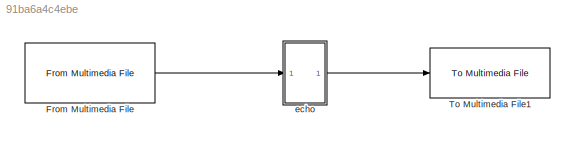
MODEL slx_91ba6a4c4ebe
KIND model
CONFIG AbsTol = auto
CONFIG EnableMultiTasking = off
CONFIG FixedStep = auto
CONFIG MaxStep = auto
CONFIG MinStep = auto
CONFIG RelTol = 1e-3
CONFIG SampleTimeConstraint = Unconstrained
CONFIG Solver = VariableStepAuto
CONFIG SolverName = VariableStepAuto
CONFIG StartTime = 0.0
CONFIG StopTime = 10.0
BLOCK [Reference] From Multimedia File  REF=dspvision/From Multimedia File
  Ports = [0, 1]
  SourceBlock = dspvision/From Multimedia File
  SourceProductBaseCode = VP
  SourceProductName = Computer Vision System Toolbox
  SourceType = From Multimedia File
BLOCK [Reference] To Multimedia File1  REF=dspvision/To Multimedia File
  Ports = [1]
  SourceBlock = dspvision/To Multimedia File
  SourceProductBaseCode = VP
  SourceProductName = Computer Vision System Toolbox
  SourceType = To Multimedia File
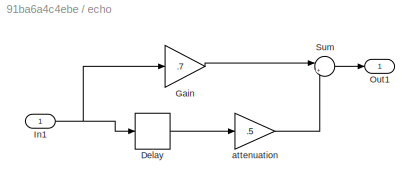
BLOCK [SubSystem] echo
  Ports = [1, 1]
  RequestExecContextInheritance = off
BLOCK [Delay] echo/Delay
  DelayLength = 6000
  DelayLengthUpperLimit = 10000
  InitialCondition = 0
  InputPortMap = u0
  InputProcessing = Columns as channels (frame based)
  Ports = [1, 1]
BLOCK [Gain] echo/Gain
  Gain = .7
  OutDataTypeStr = int16
  ParamDataTypeStr = int16
  SaturateOnIntegerOverflow = off
BLOCK [Inport] echo/In1
  IconDisplay = Port number
  OutDataTypeStr = int16
BLOCK [Outport] echo/Out1
  IconDisplay = Port number
BLOCK [Sum] echo/Sum
  IconShape = round
  InputSameDT = off
  Inputs = |++
  OutDataTypeStr = Inherit: Inherit via internal rule
  Ports = [2, 1]
  SaturateOnIntegerOverflow = off
BLOCK [Gain] echo/attenuation
  Gain = .5
  OutDataTypeStr = int16
  ParamDataTypeStr = Inherit: Inherit via internal rule
  RndMeth = Round
  SaturateOnIntegerOverflow = off
LINE From Multimedia File:1 -> echo:1
LINE echo/Delay:1 -> echo/attenuation:1
LINE echo/Gain:1 -> echo/Sum:1
NET echo/In1:1 -> echo/Delay:1, echo/Gain:1
LINE echo/Sum:1 -> echo/Out1:1
LINE echo/attenuation:1 -> echo/Sum:2
LINE echo:1 -> To Multimedia File1:1
note: NET lines group one-source signal fan-out (src -> all destinations, sorted); 1:1 wires keep LINE
